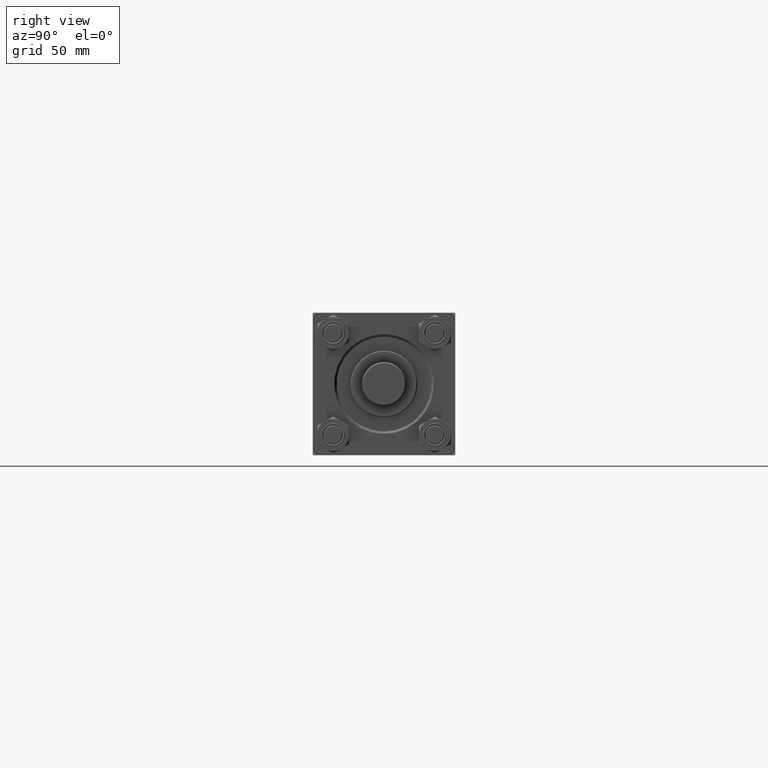
[diagram: clean part render]
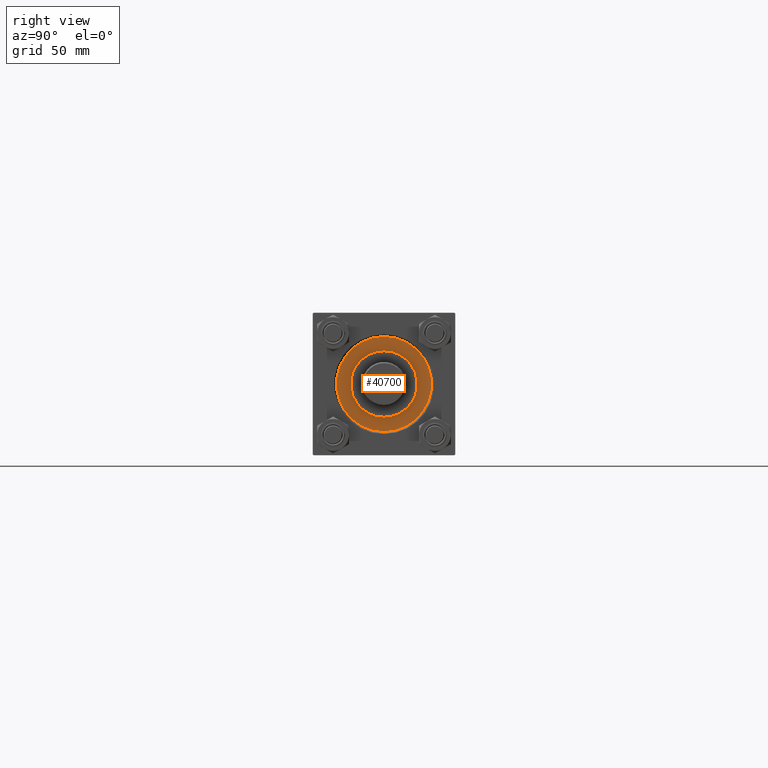
[diagram: same view with one face highlighted and labeled with its STEP entity id]
A machine part, right view. The second image highlights one B-rep face of the part: STEP entity #40700.
In plain terms, the highlighted planar face has unit normal (1, 0, -0).
Its self-contained STEP definition (entity closure, byte-faithful):
#1438 = DIRECTION ( 'NONE',  ( 1.000000000000000000, 0.000000000000000000, -0.000000000000000000 ) ) ;
#2447 = DIRECTION ( 'NONE',  ( 0.000000000000000000, 0.000000000000000000, 1.000000000000000000 ) ) ;
#4329 = DIRECTION ( 'NONE',  ( 0.000000000000000000, 0.000000000000000000, 1.000000000000000000 ) ) ;
#6889 = ORIENTED_EDGE ( 'NONE', *, *, #14470, .T. ) ;
#7438 = CIRCLE ( 'NONE', #44763, 21.00000000000000000 ) ;
#8538 = DIRECTION ( 'NONE',  ( 1.000000000000000000, 0.000000000000000000, 0.000000000000000000 ) ) ;
#9594 = EDGE_LOOP ( 'NONE', ( #27986, #29495 ) ) ;
#10477 = DIRECTION ( 'NONE',  ( 0.000000000000000000, 0.000000000000000000, 1.000000000000000000 ) ) ;
#10726 = CARTESIAN_POINT ( 'NONE',  ( 0.000000000000000000, 0.000000000000000000, 28.69999999999999929 ) ) ;
#11267 = CARTESIAN_POINT ( 'NONE',  ( -21.00000000000000000, 0.000000000000000000, 28.69999999999999929 ) ) ;
#12079 = DIRECTION ( 'NONE',  ( 0.000000000000000000, 0.000000000000000000, 1.000000000000000000 ) ) ;
#13113 = CARTESIAN_POINT ( 'NONE',  ( 0.000000000000000000, 0.000000000000000000, 28.69999999999999929 ) ) ;
#14470 = EDGE_CURVE ( 'NONE', #19191, #18833, #47968, .T. ) ;
#14984 = ORIENTED_EDGE ( 'NONE', *, *, #41159, .T. ) ;
#16169 = AXIS2_PLACEMENT_3D ( 'NONE', #35819, #4329, #24389 ) ;
#18833 = VERTEX_POINT ( 'NONE', #46746 ) ;
#19191 = VERTEX_POINT ( 'NONE', #47188 ) ;
#22245 = CIRCLE ( 'NONE', #45012, 30.00000000000000000 ) ;
#22781 = VERTEX_POINT ( 'NONE', #11267 ) ;
#24032 = FACE_BOUND ( 'NONE', #9594, .T. ) ;
#24389 = DIRECTION ( 'NONE',  ( 1.000000000000000000, 0.000000000000000000, 0.000000000000000000 ) ) ;
#24734 = CARTESIAN_POINT ( 'NONE',  ( 21.00000000000000000, 2.571758278209441661E-15, 28.69999999999999929 ) ) ;
#25097 = EDGE_CURVE ( 'NONE', #26488, #22781, #27533, .T. ) ;
#25977 = DIRECTION ( 'NONE',  ( 1.000000000000000000, 0.000000000000000000, 0.000000000000000000 ) ) ;
#26488 = VERTEX_POINT ( 'NONE', #24734 ) ;
#27533 = CIRCLE ( 'NONE', #16169, 21.00000000000000000 ) ;
#27594 = CARTESIAN_POINT ( 'NONE',  ( 0.000000000000000000, 0.000000000000000000, 28.69999999999999929 ) ) ;
#27986 = ORIENTED_EDGE ( 'NONE', *, *, #33064, .F. ) ;
#28368 = FACE_OUTER_BOUND ( 'NONE', #47914, .T. ) ;
#29495 = ORIENTED_EDGE ( 'NONE', *, *, #25097, .F. ) ;
#33064 = EDGE_CURVE ( 'NONE', #22781, #26488, #7438, .T. ) ;
#33317 = AXIS2_PLACEMENT_3D ( 'NONE', #27594, #12079, #8538 ) ;
#34402 = AXIS2_PLACEMENT_3D ( 'NONE', #13113, #43361, #1438 ) ;
#35819 = CARTESIAN_POINT ( 'NONE',  ( 0.000000000000000000, 0.000000000000000000, 28.69999999999999929 ) ) ;
#37485 = DIRECTION ( 'NONE',  ( 1.000000000000000000, 0.000000000000000000, 0.000000000000000000 ) ) ;
#40700 = ADVANCED_FACE ( 'NONE', ( #24032, #28368 ), #47944, .T. ) ;
#41064 = CARTESIAN_POINT ( 'NONE',  ( 0.000000000000000000, 0.000000000000000000, 28.69999999999999929 ) ) ;
#41159 = EDGE_CURVE ( 'NONE', #18833, #19191, #22245, .T. ) ;
#43361 = DIRECTION ( 'NONE',  ( 0.000000000000000000, 0.000000000000000000, 1.000000000000000000 ) ) ;
#44763 = AXIS2_PLACEMENT_3D ( 'NONE', #41064, #2447, #37485 ) ;
#45012 = AXIS2_PLACEMENT_3D ( 'NONE', #10726, #10477, #25977 ) ;
#46746 = CARTESIAN_POINT ( 'NONE',  ( -30.00000000000000000, 0.000000000000000000, 28.69999999999999929 ) ) ;
#47188 = CARTESIAN_POINT ( 'NONE',  ( 30.00000000000000000, 3.673940397442059178E-15, 28.69999999999999929 ) ) ;
#47914 = EDGE_LOOP ( 'NONE', ( #14984, #6889 ) ) ;
#47944 = PLANE ( 'NONE',  #34402 ) ;
#47968 = CIRCLE ( 'NONE', #33317, 30.00000000000000000 ) ;